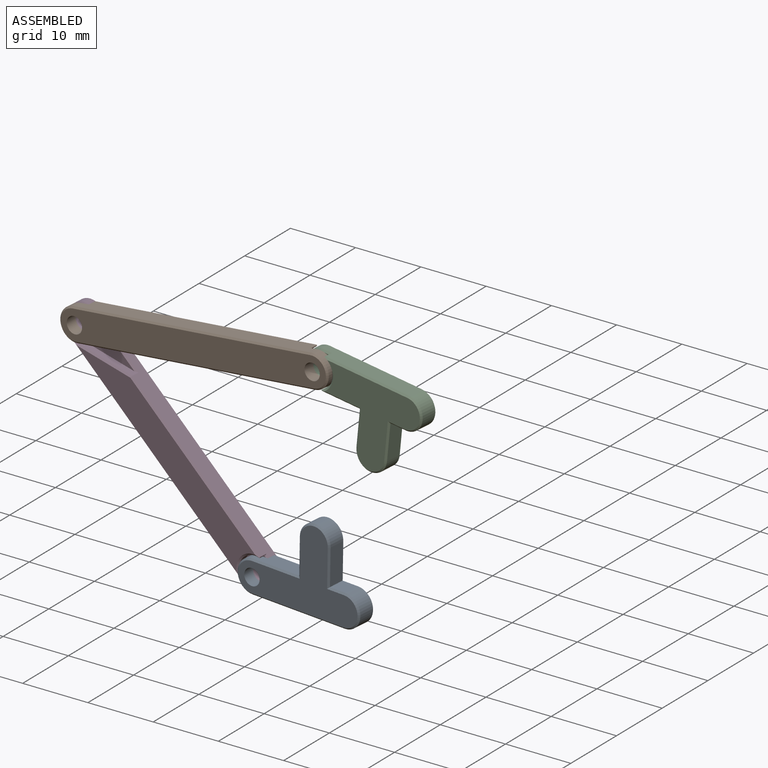
[diagram: assembled view]
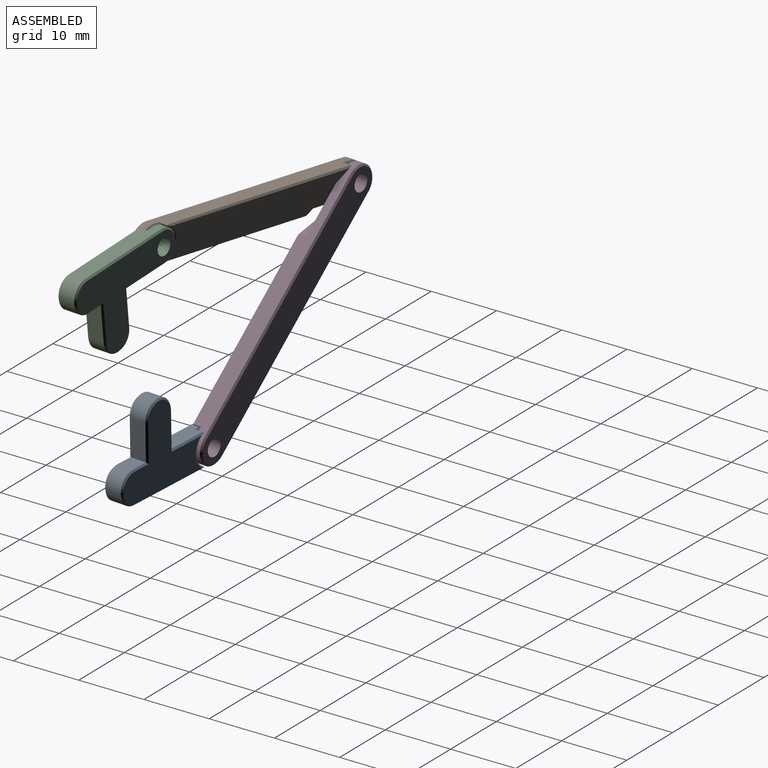
[diagram: assembled view, second angle]
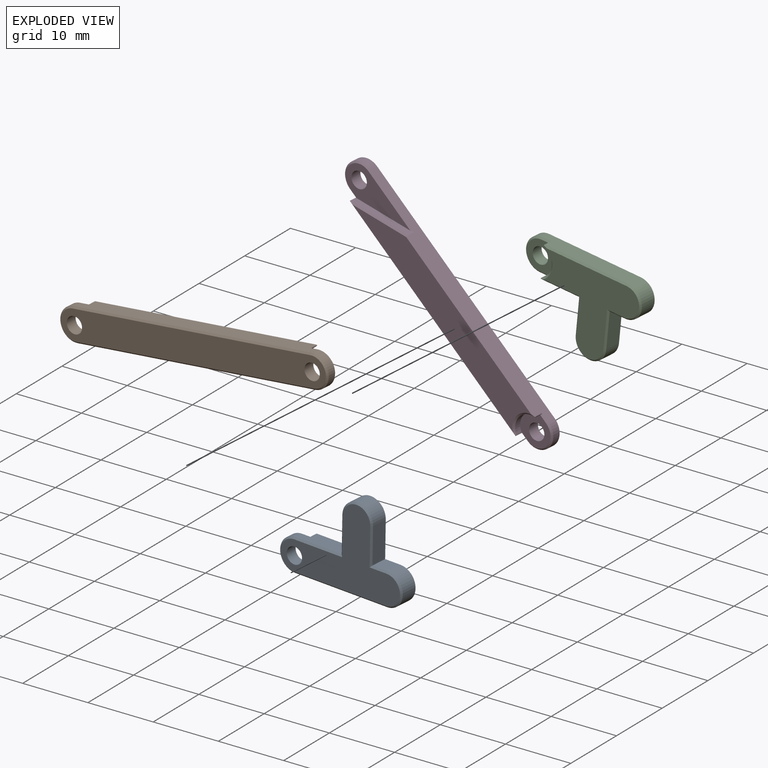
[diagram: exploded view]
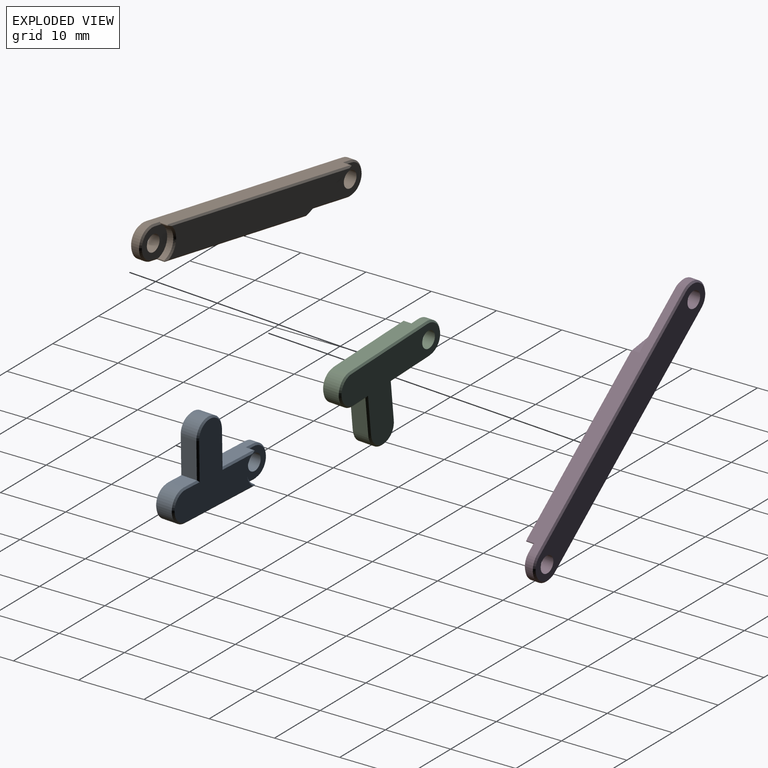
[diagram: exploded view, second angle]
ASSEMBLY  parts=4 mates=3
PART A: 34 faces, bbox 20.1x3.1x13.1 mm
  f0: plane 15x2.5mm, normal (0,0,1), area 35.8mm2, adj f1,f5,f13,f22,f23,f32
  f1: cylinder r=2.5mm len=5mm, axis (0,1,0), area 9.8mm2, adj f0,f2,f20,f25
  f2: plane 7.5x2.5mm, normal (0,0,-1), area 17mm2, adj f1,f6,f14,f18,f24,f28
  f3: plane 15.41x12.5mm, normal (0,-1,0), area 97.3mm2, adj f26,f27,f28,f29,f30,f31,f32,f33
  f4: plane 2.5x2.5mm, normal (0,0,-1), area 6.2mm2, adj f5,f8,f19,f31
  f5: cylinder r=2.5mm len=5mm, axis (0,1,0), area 19.6mm2, adj f0,f4,f21,f33
  f6: plane 5.5x2.5mm, normal (-1,0,0), area 13.7mm2, adj f2,f7,f16,f26
  f7: cylinder r=2.5mm len=5mm, axis (0,1,0), area 19.6mm2, adj f6,f8,f15,f27
  f8: plane 5.5x2.5mm, normal (1,0,0), area 13.8mm2, adj f4,f7,f17,f29
  f9: plane 19.5x12.5mm, normal (0,1,0), area 112.3mm2, adj f10,f15,f16,f17,f18,f19,f20,f21
  f10: cylinder r=1.25mm len=2.5mm, axis (0,1,0), area 13.7mm2, adj f9,f12
  f11: cylinder r=2.51mm len=4.52mm, axis (0,1,0), area 5.6mm2, adj f12,f13,f14,f23,f24,f30
  f12: plane 5x4.5mm, normal (0,-1,0), area 13.6mm2, adj f10,f11,f23,f24,f25
  f13: cylinder r=0.12mm len=1.35mm, axis (0,1,0), area 0.4mm2, adj f0,f11,f23,f30,f32
  f14: cylinder r=0.12mm len=1.35mm, axis (0,1,0), area 0.4mm2, adj f2,f11,f24,f28,f30
  f15: cone r=2.5mm half-angle=45deg, axis (0,-1,0), area 2.6mm2, adj f7,f9,f16,f17
  f16: plane 5.75x0.25mm, normal (-0.71,0.71,0), area 2mm2, adj f6,f9,f15,f18
  f17: plane 5.75x0.25mm, normal (0.71,0.71,0), area 2mm2, adj f8,f9,f15,f19
  f18: plane 7.75x0.25mm, normal (0,0.71,-0.71), area 2.7mm2, adj f2,f9,f16,f20
  f19: plane 2.75x0.25mm, normal (0,0.71,-0.71), area 0.9mm2, adj f4,f9,f17,f21
  f20: cone r=2.5mm half-angle=45deg, axis (0,-1,0), area 2.6mm2, adj f1,f9,f18,f22
  f21: cone r=2.5mm half-angle=45deg, axis (0,-1,0), area 2.6mm2, adj f5,f9,f19,f22
  f22: plane 15x0.25mm, normal (0,0.71,0.71), area 5.3mm2, adj f0,f9,f20,f21
  f23: plane 1.45x0.32mm, normal (0,-0.71,0.71), area 0.5mm2, adj f0,f11,f12,f13,f25
  f24: plane 1.45x0.32mm, normal (0,-0.71,-0.71), area 0.5mm2, adj f2,f11,f12,f14,f25
  f25: cone r=2.25mm half-angle=45deg, axis (0,1,0), area 2.6mm2, adj f1,f12,f23,f24
  f26: plane 5.75x0.25mm, normal (-0.71,-0.71,0), area 2mm2, adj f3,f6,f27,f28
  f27: cone r=2.25mm half-angle=45deg, axis (0,1,0), area 2.6mm2, adj f3,f7,f26,f29
  f28: plane 6.53x0.29mm, normal (0,-0.71,-0.71), area 2.2mm2, adj f2,f3,f14,f26,f30
  f29: plane 5.75x0.25mm, normal (0.71,-0.71,0), area 2mm2, adj f3,f8,f27,f31
  f30: cone r=2.76mm half-angle=45deg, axis (0,-1,0), area 2mm2, adj f3,f11,f13,f14,f28,f32
  f31: plane 2.75x0.25mm, normal (0,-0.71,-0.71), area 0.9mm2, adj f3,f4,f29,f33
  f32: plane 13.78x0.29mm, normal (0,-0.71,0.71), area 4.8mm2, adj f0,f3,f13,f30,f33
  f33: cone r=2.25mm half-angle=45deg, axis (0,1,0), area 2.6mm2, adj f3,f5,f31,f32
PART B: 29 faces, bbox 44.2x3.1x5.1 mm
  f0: plane 39.09x2.5mm, normal (0,0,1), area 83.9mm2, adj f2,f5,f8,f12,f17,f21,f25,f26
  f1: plane 35.32x4.5mm, normal (0,1,0), area 137.7mm2, adj f19,f20,f21,f22
  f2: cylinder r=2.5mm len=5mm, axis (0,1,0), area 9.8mm2, adj f0,f3,f15,f24
  f3: plane 39.09x2.5mm, normal (0,0,-1), area 94.2mm2, adj f2,f5,f13,f14,f16,f20,f23,f28
  f4: cylinder r=1.25mm len=2.5mm, axis (0,-1,0), area 13.7mm2, adj f7,f11
  f5: cylinder r=2.5mm len=5mm, axis (0,1,0), area 9.8mm2, adj f0,f3,f18,f27
  f6: cylinder r=1.25mm len=2.5mm, axis (0,-1,0), area 13.7mm2, adj f7,f9
  f7: plane 43.59x4.5mm, normal (0,-1,0), area 182mm2, adj f4,f6,f15,f16,f17,f18
  f8: plane 8.26x4.77mm, normal (0.5,0,0.87), area 9.6mm2, adj f0,f9,f14,f19,f26,f28
  f9: plane 11.48x4.5mm, normal (0,1,0), area 27mm2, adj f6,f8,f26,f27,f28
  f10: cylinder r=2.5mm len=4.52mm, axis (0,1,0), area 5.7mm2, adj f11,f12,f13,f22,f23,f25
  f11: plane 5x4.5mm, normal (0,1,0), area 13.6mm2, adj f4,f10,f23,f24,f25
  f12: cylinder r=0.12mm len=1.35mm, axis (0,1,0), area 0.4mm2, adj f0,f10,f21,f22,f25
  f13: cylinder r=0.12mm len=1.35mm, axis (0,1,0), area 0.4mm2, adj f3,f10,f20,f22,f23
  f14: cylinder r=0.12mm len=1.34mm, axis (0,-1,0), area 0.4mm2, adj f3,f8,f19,f20,f28
  f15: cone r=2.25mm half-angle=45deg, axis (0,1,0), area 2.6mm2, adj f2,f7,f16,f17
  f16: plane 39.09x0.25mm, normal (0,-0.71,-0.71), area 13.8mm2, adj f3,f7,f15,f18
  f17: plane 39.09x0.25mm, normal (0,-0.71,0.71), area 13.8mm2, adj f0,f7,f15,f18
  f18: cone r=2.25mm half-angle=45deg, axis (0,1,0), area 2.6mm2, adj f5,f7,f16,f17
  f19: plane 8.43x4.95mm, normal (0.35,0.71,0.61), area 3.3mm2, adj f1,f8,f14,f20,f21
  f20: plane 36.54x0.29mm, normal (0,0.71,-0.71), area 12.8mm2, adj f1,f3,f13,f14,f19,f22
  f21: plane 28.22x0.29mm, normal (0,0.71,0.71), area 9.9mm2, adj f0,f1,f12,f19,f22
  f22: cone r=2.75mm half-angle=45deg, axis (0,1,0), area 2mm2, adj f1,f10,f12,f13,f20,f21
  f23: plane 1.43x0.32mm, normal (0,0.71,-0.71), area 0.4mm2, adj f3,f10,f11,f13,f24
  f24: cone r=2.25mm half-angle=45deg, axis (0,-1,0), area 2.6mm2, adj f2,f11,f23,f25
  f25: plane 1.43x0.32mm, normal (0,0.71,0.71), area 0.4mm2, adj f0,f10,f11,f12,f24
  f26: plane 9.66x0.25mm, normal (0,0.71,0.71), area 3.3mm2, adj f0,f8,f9,f27
  f27: cone r=2.25mm half-angle=45deg, axis (0,-1,0), area 2.6mm2, adj f5,f9,f26,f28
  f28: plane 1.53x0.32mm, normal (0,0.71,-0.71), area 0.5mm2, adj f3,f8,f9,f14,f27
PART C: same geometry as A
PART D: 29 faces, bbox 44.2x3.1x5.1 mm
  f0: plane 39.09x2.5mm, normal (0,0,1), area 83.9mm2, adj f3,f5,f9,f12,f16,f19,f23,f26
  f1: plane 35.32x4.5mm, normal (0,-1,0), area 137.7mm2, adj f22,f23,f24,f25
  f2: plane 39.09x2.5mm, normal (0,0,-1), area 94.2mm2, adj f3,f5,f13,f14,f17,f21,f24,f28
  f3: cylinder r=2.5mm len=5mm, axis (0,1,0), area 9.8mm2, adj f0,f2,f15,f20
  f4: cylinder r=1.25mm len=2.5mm, axis (0,-1,0), area 13.7mm2, adj f7,f11
  f5: cylinder r=2.5mm len=5mm, axis (0,1,0), area 9.8mm2, adj f0,f2,f18,f27
  f6: cylinder r=1.25mm len=2.5mm, axis (0,-1,0), area 13.7mm2, adj f7,f8
  f7: plane 43.59x4.5mm, normal (0,1,0), area 182mm2, adj f4,f6,f15,f16,f17,f18
  f8: plane 11.48x4.5mm, normal (0,-1,0), area 27mm2, adj f6,f9,f26,f27,f28
  f9: plane 8.26x4.77mm, normal (-0.5,0,0.87), area 9.6mm2, adj f0,f8,f14,f22,f26,f28
  f10: cylinder r=2.5mm len=4.52mm, axis (0,-1,0), area 5.7mm2, adj f11,f12,f13,f19,f21,f25
  f11: plane 5x4.5mm, normal (0,-1,0), area 13.6mm2, adj f4,f10,f19,f20,f21
  f12: cylinder r=0.12mm len=1.35mm, axis (0,-1,0), area 0.4mm2, adj f0,f10,f19,f23,f25
  f13: cylinder r=0.12mm len=1.35mm, axis (0,-1,0), area 0.4mm2, adj f2,f10,f21,f24,f25
  f14: cylinder r=0.12mm len=1.34mm, axis (0,1,0), area 0.4mm2, adj f2,f9,f22,f24,f28
  f15: cone r=2.5mm half-angle=45deg, axis (0,-1,0), area 2.6mm2, adj f3,f7,f16,f17
  f16: plane 39.09x0.25mm, normal (0,0.71,0.71), area 13.8mm2, adj f0,f7,f15,f18
  f17: plane 39.09x0.25mm, normal (0,0.71,-0.71), area 13.8mm2, adj f2,f7,f15,f18
  f18: cone r=2.5mm half-angle=45deg, axis (0,-1,0), area 2.6mm2, adj f5,f7,f16,f17
  f19: plane 1.43x0.32mm, normal (0,-0.71,0.71), area 0.4mm2, adj f0,f10,f11,f12,f20
  f20: cone r=2.25mm half-angle=45deg, axis (0,1,0), area 2.6mm2, adj f3,f11,f19,f21
  f21: plane 1.43x0.32mm, normal (0,-0.71,-0.71), area 0.4mm2, adj f2,f10,f11,f13,f20
  f22: plane 8.43x4.95mm, normal (-0.35,-0.71,0.61), area 3.3mm2, adj f1,f9,f14,f23,f24
  f23: plane 28.22x0.29mm, normal (0,-0.71,0.71), area 9.9mm2, adj f0,f1,f12,f22,f25
  f24: plane 36.54x0.29mm, normal (0,-0.71,-0.71), area 12.8mm2, adj f1,f2,f13,f14,f22,f25
  f25: cone r=2.5mm half-angle=45deg, axis (0,-1,0), area 2mm2, adj f1,f10,f12,f13,f23,f24
  f26: plane 9.66x0.25mm, normal (0,-0.71,0.71), area 3.3mm2, adj f0,f8,f9,f27
  f27: cone r=2.25mm half-angle=45deg, axis (0,1,0), area 2.6mm2, adj f5,f8,f26,f28
  f28: plane 1.53x0.32mm, normal (0,-0.71,-0.71), area 0.5mm2, adj f2,f8,f9,f14,f27
PLACE A rot(axis=(-1,0.04,0.01),179.9deg) t=(-112.3,-15.01,-49.48)mm
PLACE B rot(axis=(0.04,1,0),172.6deg) t=(-129.38,-10.64,-20.52)mm
PLACE C rot(axis=(0.04,0.79,-0.61),7.5deg) t=(-102.55,-12.31,-23.71)mm
PLACE D rot(axis=(0.04,0.99,-0.1),42.5deg) t=(-135.6,-9.62,-40.53)mm
MATE revolute B.f2 <-> C.f10  axis (0.08,1,0) through (-109.84,-13.47,-20.47)mm
MATE revolute D.f3 <-> A.f10  axis (-0.08,-1,0) through (-119.65,-12.65,-51.82)mm
MATE revolute B.f5 <-> D.f5  axis (0.08,1,0) through (-148.47,-10.34,-25.53)mm
